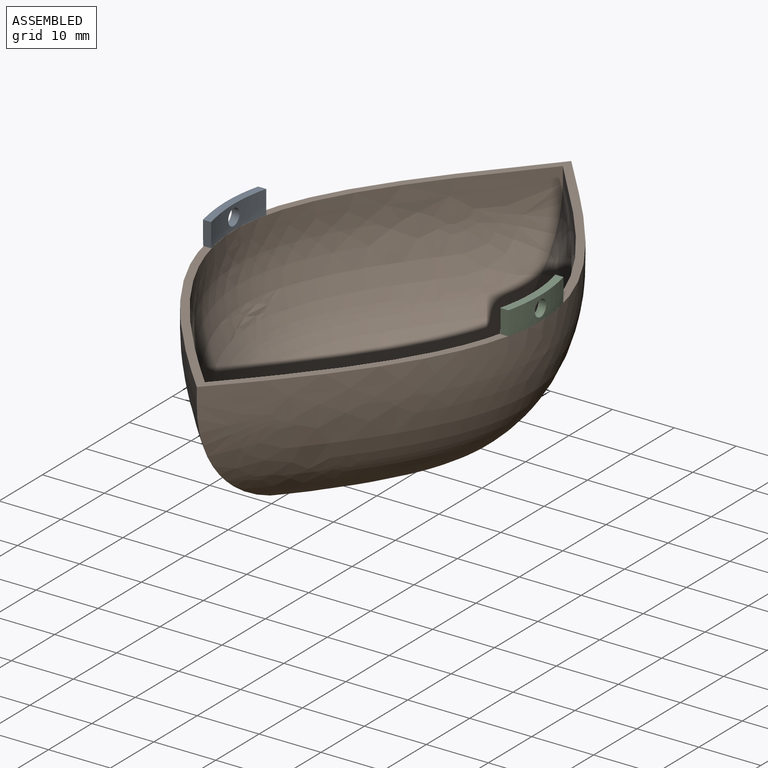
[diagram: assembled view]
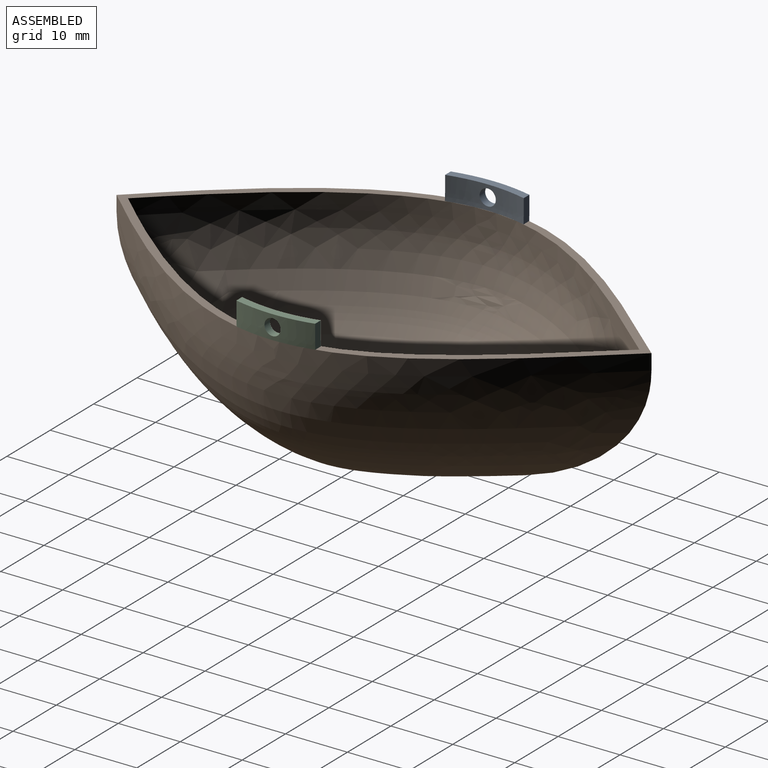
[diagram: assembled view, second angle]
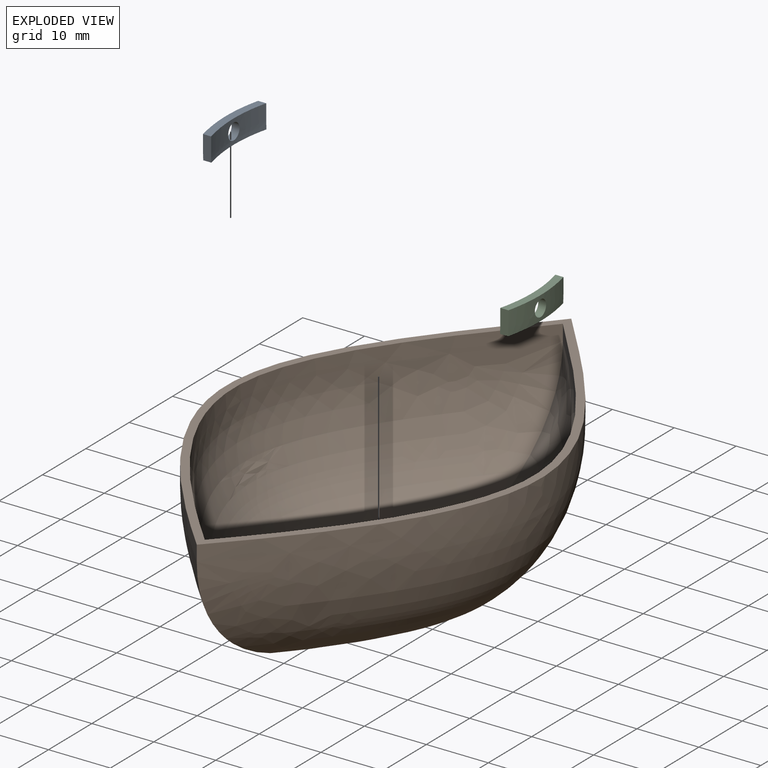
[diagram: exploded view]
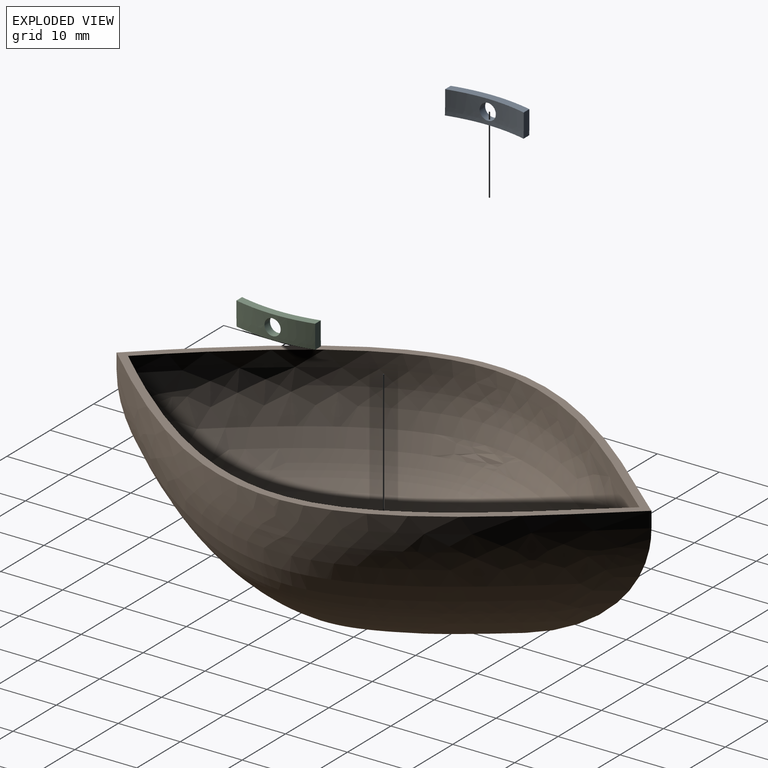
[diagram: exploded view, second angle]
ASSEMBLY  parts=3 mates=2
PART A: 9 faces, bbox 23.3x14.5x25.5 mm
  f0: plane 12.91x2.26mm, normal (0,0,1), area 16.3mm2, adj f1,f2,f5,f6
  f1: extruded ~12.7x2.54mm, area 28.3mm2, adj f0,f3,f5,f6,f8
  f2: extruded ~12.7x2.54mm, area 28.3mm2, adj f0,f4,f5,f6,f8
  f3: bspline ~23.05x22.86mm, area 15.2mm2, adj f1,f5,f6,f7,f8
  f4: bspline ~21.85x21.59mm, area 15.2mm2, adj f2,f5,f6,f7,f8
  f5: plane 3.82x1.35mm, normal (0,-1,0), area 5mm2, adj f0,f1,f2,f3,f4,f7
  f6: plane 3.82x1.35mm, normal (0,1,0), area 5mm2, adj f0,f1,f2,f3,f4,f7
  f7: plane 12.7x2.08mm, normal (0,0,-1), area 16.3mm2, adj f3,f4,f5,f6
  f8: cylinder r=1.3mm len=2.61mm, axis (1,0,0), area 10.4mm2, adj f1,f2,f3,f4
PART B: 11 faces, bbox 53.5x101.4x25.4 mm
  f0: plane 86.36x53.45mm, normal (0,0,1), area 254.2mm2, adj f1,f2,f6,f7
  f1: extruded ~86.36x25.4mm, area 259.9mm2, adj f0,f2,f5
  f2: extruded ~86.36x25.4mm, area 259.9mm2, adj f0,f1,f4
  f3: plane 13.13x5.08mm, normal (0,0,-1), area 40.2mm2, adj f4,f5
  f4: bspline ~92.18x46.34mm, area 2221.9mm2, adj f2,f3,f5
  f5: bspline ~100.13x51.72mm, area 2222.2mm2, adj f1,f3,f4
  f6: extruded ~82.56x24.13mm, area 248mm2, adj f0,f7,f10
  f7: extruded ~82.56x24.13mm, area 248mm2, adj f0,f6,f9
  f8: plane 13.13x5.08mm, normal (0,0,1), area 40.2mm2, adj f9,f10
  f9: bspline ~86.49x42.51mm, area 2006.9mm2, adj f7,f8,f10
  f10: bspline ~87.81x43.58mm, area 2008.6mm2, adj f6,f8,f9
PART C: 9 faces, bbox 23.3x14.7x25.5 mm
  f0: bspline ~23.07x22.86mm, area 15.2mm2, adj f1,f5,f6,f7,f8
  f1: extruded ~12.7x2.54mm, area 28.3mm2, adj f0,f4,f6,f7,f8
  f2: bspline ~21.88x21.59mm, area 15.2mm2, adj f3,f5,f6,f7,f8
  f3: extruded ~12.7x2.54mm, area 28.3mm2, adj f2,f4,f6,f7,f8
  f4: plane 12.91x2.26mm, normal (0,0,1), area 16.3mm2, adj f1,f3,f6,f7
  f5: plane 12.71x2.09mm, normal (0,0,-1), area 16.3mm2, adj f0,f2,f6,f7
  f6: plane 3.82x1.35mm, normal (0,1,0), area 5mm2, adj f0,f1,f2,f3,f4,f5
  f7: plane 3.82x1.35mm, normal (0,-1,0), area 5mm2, adj f0,f1,f2,f3,f4,f5
  f8: cylinder r=1.3mm len=2.61mm, axis (1,0,0), area 10.4mm2, adj f0,f1,f2,f3
PLACE A t=(2.4,-0.55,15.34)mm
PLACE B t=(2.44,-0.4,11.53)mm
PLACE C t=(2.47,-0.6,15.34)mm
MATE fastened A.f7 <-> B.f0  axis (0,0,1) through (-21.69,-0.57,36.93)mm
MATE fastened C.f5 <-> B.f0  axis (0,0,1) through (26.57,-0.57,36.93)mm
